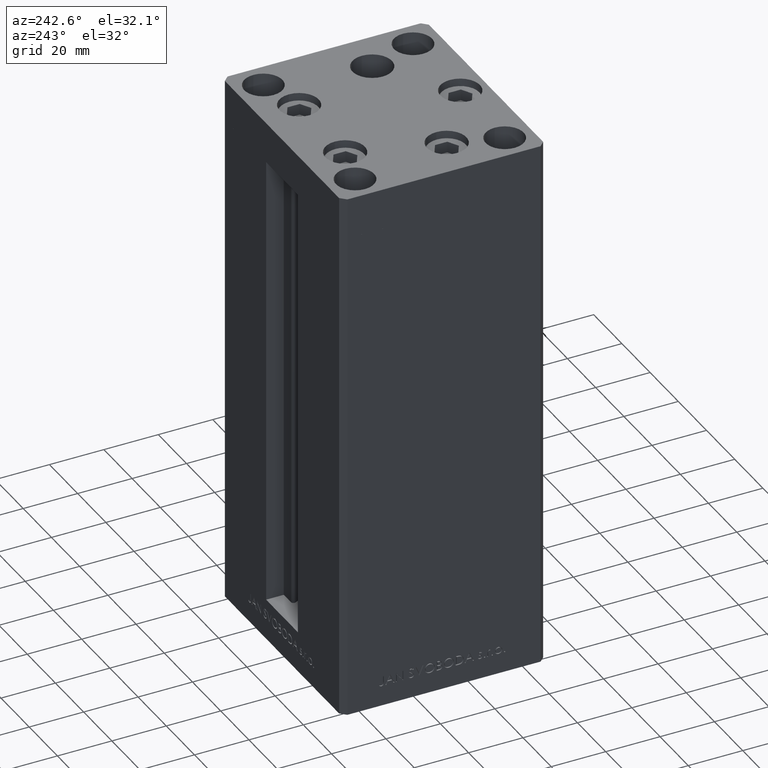
[diagram: clean part render]
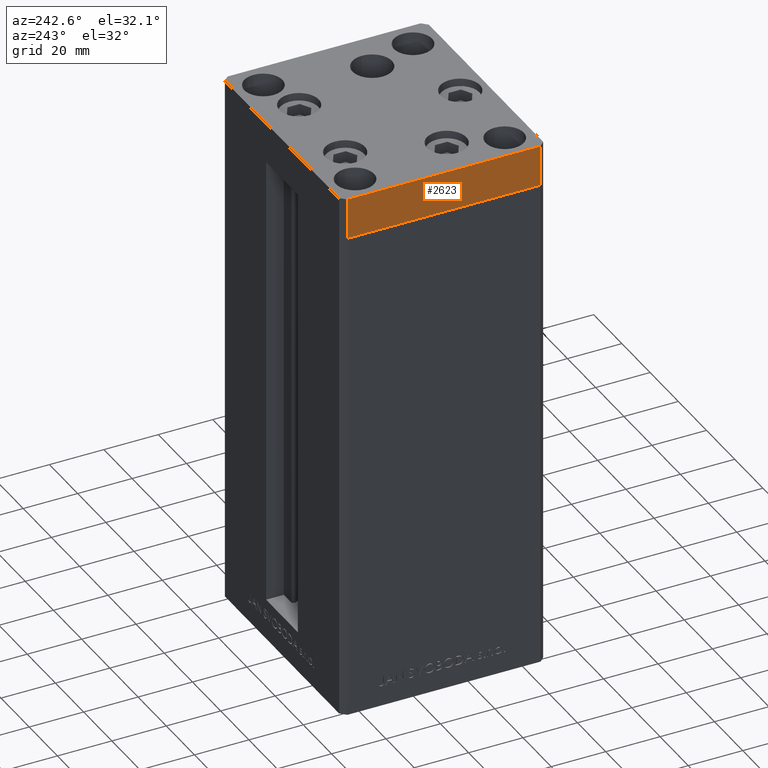
[diagram: same view with one face highlighted and labeled with its STEP entity id]
A machine part, auxiliary view. The second image highlights one B-rep face of the part: STEP entity #2623.
In plain terms, the highlighted planar face has unit normal (-1, -0, 0).
Its self-contained STEP definition (entity closure, byte-faithful):
#342 = CARTESIAN_POINT ( 'NONE',  ( -42.50000000000000711, 35.49999999999997158, -15.00000000000000000 ) ) ;
#472 = VERTEX_POINT ( 'NONE', #10645 ) ;
#637 = PLANE ( 'NONE',  #3983 ) ;
#2334 = VECTOR ( 'NONE', #28523, 1000.000000000000000 ) ;
#2623 = ADVANCED_FACE ( 'NONE', ( #12279 ), #637, .T. ) ;
#3983 = AXIS2_PLACEMENT_3D ( 'NONE', #34800, #45926, #27125 ) ;
#4819 = DIRECTION ( 'NONE',  ( 0.000000000000000000, 0.000000000000000000, 1.000000000000000000 ) ) ;
#5754 = LINE ( 'NONE', #20856, #2334 ) ;
#7786 = LINE ( 'NONE', #342, #34642 ) ;
#10645 = CARTESIAN_POINT ( 'NONE',  ( -42.50000000000000000, -35.50000000000000711, -15.00000000000000000 ) ) ;
#10724 = EDGE_CURVE ( 'NONE', #472, #24491, #42072, .T. ) ;
#11980 = VERTEX_POINT ( 'NONE', #14366 ) ;
#12267 = CARTESIAN_POINT ( 'NONE',  ( -42.50000000000000000, -35.50000000000000711, 0.000000000000000000 ) ) ;
#12279 = FACE_OUTER_BOUND ( 'NONE', #38572, .T. ) ;
#12733 = ORIENTED_EDGE ( 'NONE', *, *, #47468, .F. ) ;
#13032 = VERTEX_POINT ( 'NONE', #17554 ) ;
#14366 = CARTESIAN_POINT ( 'NONE',  ( -42.50000000000000711, 35.49999999999997158, 0.000000000000000000 ) ) ;
#17554 = CARTESIAN_POINT ( 'NONE',  ( -42.50000000000000711, 35.49999999999997158, -15.00000000000000000 ) ) ;
#20521 = CARTESIAN_POINT ( 'NONE',  ( -42.50000000000000711, 35.49999999999997158, -15.00000000000000000 ) ) ;
#20856 = CARTESIAN_POINT ( 'NONE',  ( -42.50000000000000711, 35.49999999999997158, 0.000000000000000000 ) ) ;
#24491 = VERTEX_POINT ( 'NONE', #12267 ) ;
#26498 = EDGE_CURVE ( 'NONE', #11980, #24491, #5754, .T. ) ;
#27125 = DIRECTION ( 'NONE',  ( 9.773090005503140331E-17, -1.000000000000000000, 0.000000000000000000 ) ) ;
#28188 = DIRECTION ( 'NONE',  ( 9.773090005503140331E-17, -1.000000000000000000, 0.000000000000000000 ) ) ;
#28523 = DIRECTION ( 'NONE',  ( 9.773090005503140331E-17, -1.000000000000000000, 0.000000000000000000 ) ) ;
#28774 = VECTOR ( 'NONE', #28188, 1000.000000000000000 ) ;
#31808 = ORIENTED_EDGE ( 'NONE', *, *, #26498, .F. ) ;
#34549 = ORIENTED_EDGE ( 'NONE', *, *, #10724, .T. ) ;
#34642 = VECTOR ( 'NONE', #4819, 1000.000000000000000 ) ;
#34800 = CARTESIAN_POINT ( 'NONE',  ( -42.50000000000000711, 35.49999999999997158, -15.00000000000000000 ) ) ;
#34993 = ORIENTED_EDGE ( 'NONE', *, *, #35474, .T. ) ;
#35474 = EDGE_CURVE ( 'NONE', #13032, #472, #39329, .T. ) ;
#38368 = DIRECTION ( 'NONE',  ( 0.000000000000000000, 0.000000000000000000, 1.000000000000000000 ) ) ;
#38572 = EDGE_LOOP ( 'NONE', ( #31808, #12733, #34993, #34549 ) ) ;
#39329 = LINE ( 'NONE', #20521, #28774 ) ;
#42072 = LINE ( 'NONE', #46534, #46124 ) ;
#45926 = DIRECTION ( 'NONE',  ( -1.000000000000000000, -9.773090005503140331E-17, 0.000000000000000000 ) ) ;
#46124 = VECTOR ( 'NONE', #38368, 1000.000000000000000 ) ;
#46534 = CARTESIAN_POINT ( 'NONE',  ( -42.50000000000000000, -35.50000000000000711, -15.00000000000000000 ) ) ;
#47468 = EDGE_CURVE ( 'NONE', #13032, #11980, #7786, .T. ) ;